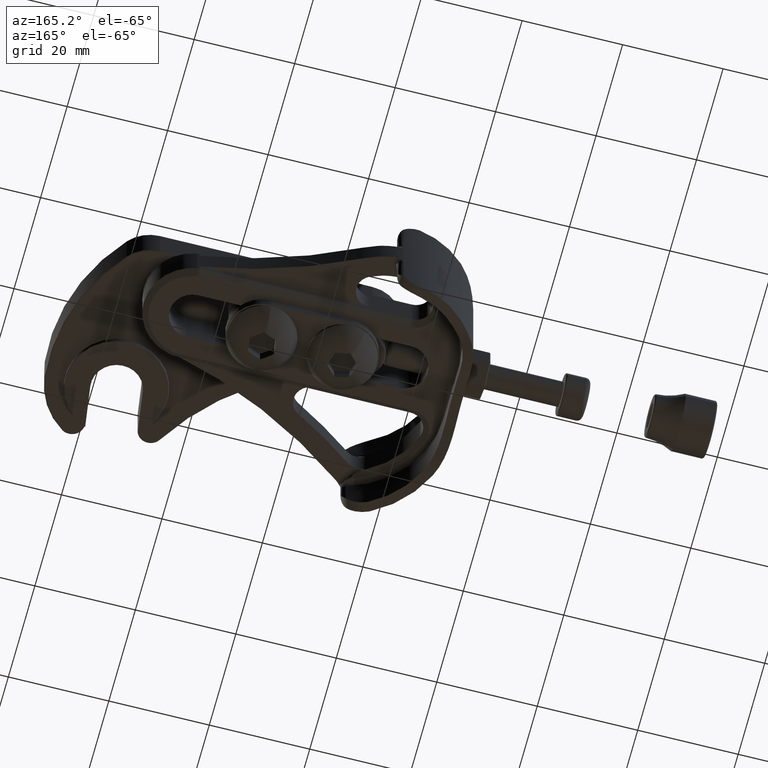
[diagram: clean part render]
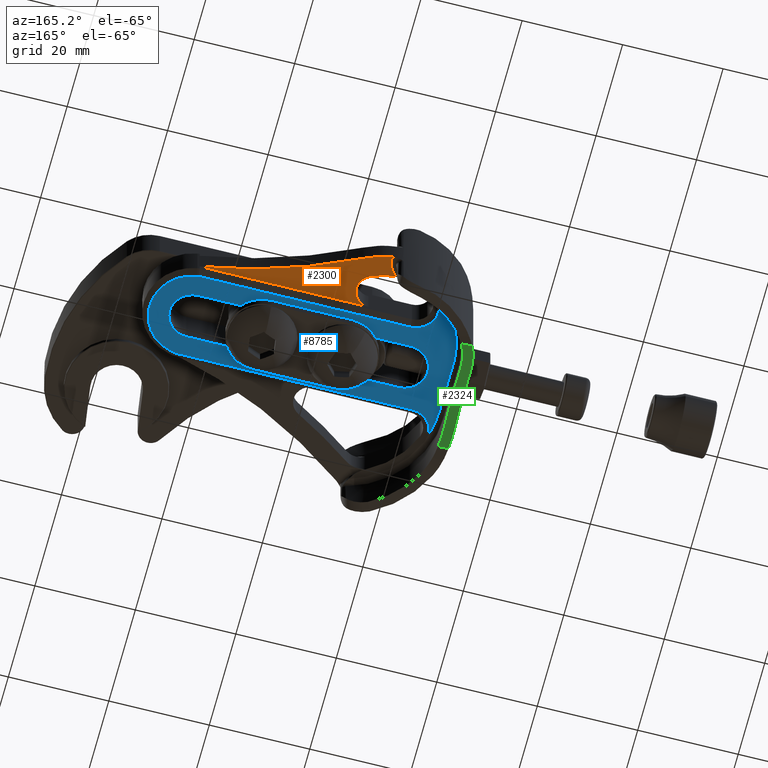
[diagram: same view with three faces highlighted in distinct colors, each labeled with its STEP entity id]
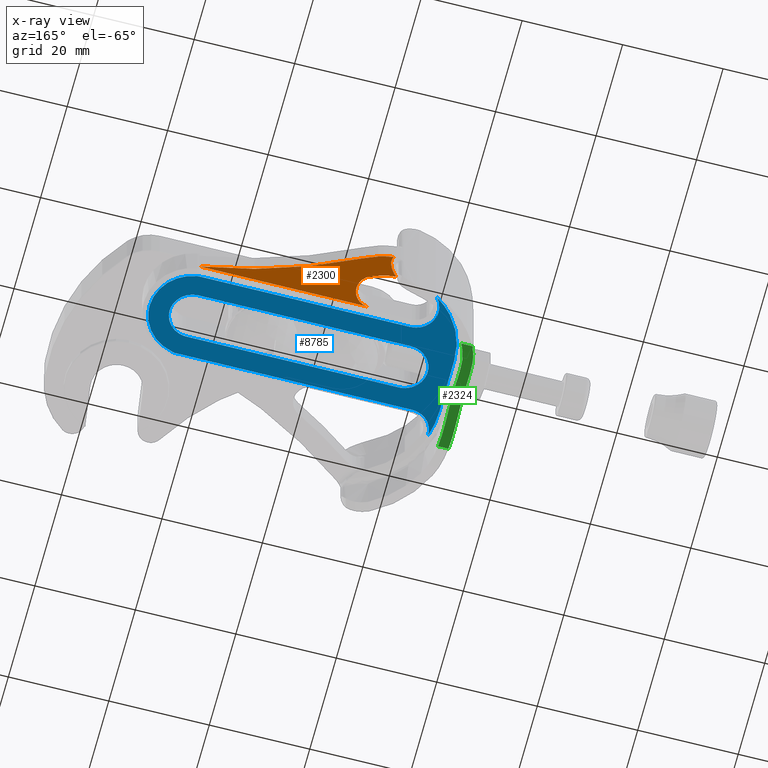
[diagram: x-ray of the same camera — body ghosted, the three highlighted faces saturated]
A machine part, auxiliary view with three faces highlighted in distinct colors.
The next image is the same camera in x-ray (body ghosted, the three faces saturated) — at least one of them is partly hidden behind the body in this view.
Their STEP definitions:

[orange] entity #2300 — the highlighted planar face has unit normal (0, 0, 1).
#6 = PLANE ( 'NONE',  #7366 ) ;
#8 = CARTESIAN_POINT ( 'NONE',  ( -7.710999999999999400, -4.462636479999999600, -0.09600000000000000200 ) ) ;
#9 = DIRECTION ( 'NONE',  ( 0.0000000000000000000, 0.0000000000000000000, 1.000000000000000000 ) ) ;
#10 = DIRECTION ( 'NONE',  ( 1.000000000000000000, 0.0000000000000000000, -0.0000000000000000000 ) ) ;
#390 = B_SPLINE_CURVE_WITH_KNOTS ( 'NONE', 3,
 ( #7849, #7844, #7843, #7850, #7851, #7852, #7853, #7854, #7855, #7856 ),
 .UNSPECIFIED., .F., .F.,
 ( 4, 2, 2, 2, 4 ),
 ( 0.4186429845292527500, 0.5639822383969395100, 0.7093214922646263700, 0.8546607461323132400, 1.000000000000000000 ),
 .UNSPECIFIED. ) ;
#419 = B_SPLINE_CURVE_WITH_KNOTS ( 'NONE', 3,
 ( #8044, #8041, #8040, #8046, #8047, #8048 ),
 .UNSPECIFIED., .F., .F.,
 ( 4, 2, 4 ),
 ( 0.0000000000000000000, 0.5000000000000000000, 1.000000000000000000 ),
 .UNSPECIFIED. ) ;
#435 = VERTEX_POINT ( 'NONE', #7762 ) ;
#548 = EDGE_LOOP ( 'NONE', ( #6985, #6986, #6987, #6988, #6989, #6990, #6991, #6992, #6993, #6994, #6995 ) ) ;
#573 = EDGE_CURVE ( 'NONE', #7254, #1844, #390, .T. ) ;
#578 = EDGE_CURVE ( 'NONE', #1844, #1840, #2954, .T. ) ;
#620 = EDGE_CURVE ( 'NONE', #1840, #7306, #419, .T. ) ;
#719 = EDGE_CURVE ( 'NONE', #2700, #2705, #3338, .T. ) ;
#786 = EDGE_CURVE ( 'NONE', #7272, #7254, #1931, .T. ) ;
#1029 = CARTESIAN_POINT ( 'NONE',  ( 0.7035010000000000400, 0.7955980000000000300, -0.09600000000000000200 ) ) ;
#1030 = DIRECTION ( 'NONE',  ( 0.0000000000000000000, 0.0000000000000000000, 1.000000000000000000 ) ) ;
#1031 = DIRECTION ( 'NONE',  ( 1.000000000000000000, 0.0000000000000000000, 0.0000000000000000000 ) ) ;
#1840 = VERTEX_POINT ( 'NONE', #9873 ) ;
#1844 = VERTEX_POINT ( 'NONE', #9877 ) ;
#1931 = B_SPLINE_CURVE_WITH_KNOTS ( 'NONE', 3,
 ( #2204, #2203, #2210, #2211, #2212, #2213 ),
 .UNSPECIFIED., .F., .F.,
 ( 4, 2, 4 ),
 ( 0.0000000000000000000, 0.2093214922646263700, 0.4186429845292527500 ),
 .UNSPECIFIED. ) ;
#2203 = CARTESIAN_POINT ( 'NONE',  ( 0.9341809636211564300, 0.6152062102135161800, -0.09599999999999997400 ) ) ;
#2204 = CARTESIAN_POINT ( 'NONE',  ( 0.9120032879308621600, 0.6256372520546552600, -0.09599999999999997400 ) ) ;
#2210 = CARTESIAN_POINT ( 'NONE',  ( 0.9532953844568629000, 0.5983591210388492500, -0.09600000000000001600 ) ) ;
#2211 = CARTESIAN_POINT ( 'NONE',  ( 0.9795634615029601400, 0.5569754061201399600, -0.09600000000000001600 ) ) ;
#2212 = CARTESIAN_POINT ( 'NONE',  ( 0.9866729994286196300, 0.5325082859784630000, -0.09600000000000000200 ) ) ;
#2213 = CARTESIAN_POINT ( 'NONE',  ( 0.9866778666869103800, 0.5080000060618086200, -0.09600000000000000200 ) ) ;
#2300 = ADVANCED_FACE ( 'NONE', ( #3533 ), #6, .F. ) ;
#2700 = VERTEX_POINT ( 'NONE', #9438 ) ;
#2705 = VERTEX_POINT ( 'NONE', #9443 ) ;
#2722 = EDGE_CURVE ( 'NONE', #7062, #7061, #9016, .T. ) ;
#2723 = EDGE_CURVE ( 'NONE', #7061, #7272, #9765, .T. ) ;
#2745 = EDGE_CURVE ( 'NONE', #2705, #7288, #9025, .T. ) ;
#2761 = EDGE_CURVE ( 'NONE', #7306, #7288, #9790, .T. ) ;
#2925 = AXIS2_PLACEMENT_3D ( 'NONE', #1029, #1030, #1031 ) ;
#2954 = LINE ( 'NONE', #7694, #2955 ) ;
#2955 = VECTOR ( 'NONE', #7695, 39.37007874015748100 ) ;
#3338 = CIRCLE ( 'NONE', #2925, 0.08500000453397003900 ) ;
#3533 = FACE_OUTER_BOUND ( 'NONE', #548, .T. ) ;
#3814 = CARTESIAN_POINT ( 'NONE',  ( 0.8218221351126873100, 0.6584075706107289600, -0.09600000000000001600 ) ) ;
#3815 = CARTESIAN_POINT ( 'NONE',  ( 0.8527941904187770200, 0.6502520359449236500, -0.09600000000000000200 ) ) ;
#3816 = CARTESIAN_POINT ( 'NONE',  ( 0.6875000000000000000, 0.1482960000000000100, -0.09600000000000000200 ) ) ;
#3817 = DIRECTION ( 'NONE',  ( -0.0000000000000000000, -0.0000000000000000000, -1.000000000000000000 ) ) ;
#3818 = DIRECTION ( 'NONE',  ( 1.000000000000000000, -5.340698087539807600E-015, 0.0000000000000000000 ) ) ;
#3820 = CARTESIAN_POINT ( 'NONE',  ( 0.8830208715123644100, 0.6392681175492411800, -0.09600000000000000200 ) ) ;
#3821 = CARTESIAN_POINT ( 'NONE',  ( 0.9120032879308621600, 0.6256372520546552600, -0.09599999999999997400 ) ) ;
#3983 = CARTESIAN_POINT ( 'NONE',  ( 0.6875000000000000000, 0.1482960000000000100, -0.09600000000000000200 ) ) ;
#3984 = DIRECTION ( 'NONE',  ( -0.0000000000000000000, -0.0000000000000000000, -1.000000000000000000 ) ) ;
#3985 = DIRECTION ( 'NONE',  ( 1.000000000000000000, -6.208745457266835800E-015, 0.0000000000000000000 ) ) ;
#4037 = CARTESIAN_POINT ( 'NONE',  ( 0.9985574622086470500, 0.7614024100196424800, -0.09600000000000001600 ) ) ;
#4038 = CARTESIAN_POINT ( 'NONE',  ( 0.9648900381349437800, 0.7784834902620448900, -0.09600000000000000200 ) ) ;
#4054 = CARTESIAN_POINT ( 'NONE',  ( 0.9298128877733130600, 0.7927849219825567900, -0.09600000000000000200 ) ) ;
#4055 = CARTESIAN_POINT ( 'NONE',  ( 0.8938000682135985900, 0.8041134511617845600, -0.09600000000000000200 ) ) ;
#4305 = CARTESIAN_POINT ( 'NONE',  ( 0.8218221351126873100, 0.6584075706107289600, -0.09600000000000001600 ) ) ;
#4306 = CARTESIAN_POINT ( 'NONE',  ( 0.7197162253693228900, 0.6748113039324935600, -0.09600000000000000200 ) ) ;
#4500 = CARTESIAN_POINT ( 'NONE',  ( 0.5767290379174511200, 0.8420077878207702400, -0.09600000000000000200 ) ) ;
#4501 = DIRECTION ( 'NONE',  ( 0.0000000000000000000, 0.0000000000000000000, 1.000000000000000000 ) ) ;
#4502 = DIRECTION ( 'NONE',  ( 1.000000000000000000, 0.0000000000000000000, 0.0000000000000000000 ) ) ;
#4504 = CARTESIAN_POINT ( 'NONE',  ( 0.7035010000000000400, 0.7955980000000000300, -0.09600000000000000200 ) ) ;
#4505 = DIRECTION ( 'NONE',  ( 0.0000000000000000000, 0.0000000000000000000, 1.000000000000000000 ) ) ;
#4506 = DIRECTION ( 'NONE',  ( 1.000000000000000000, 0.0000000000000000000, 0.0000000000000000000 ) ) ;
#4592 = CIRCLE ( 'NONE', #4802, 0.2199999999999988100 ) ;
#4594 = CIRCLE ( 'NONE', #4803, 0.08500000453397003900 ) ;
#4802 = AXIS2_PLACEMENT_3D ( 'NONE', #4500, #4501, #4502 ) ;
#4803 = AXIS2_PLACEMENT_3D ( 'NONE', #4504, #4505, #4506 ) ;
#5313 = CARTESIAN_POINT ( 'NONE',  ( 0.9866778666869103800, 0.5080000060618086200, -0.09600000000000000200 ) ) ;
#5323 = CARTESIAN_POINT ( 'NONE',  ( 0.9120032879308621600, 0.6256372520546552600, -0.09599999999999997400 ) ) ;
#5339 = CARTESIAN_POINT ( 'NONE',  ( 0.8938000682135985900, 0.8041134511617845600, -0.09600000000000000200 ) ) ;
#5355 = CARTESIAN_POINT ( 'NONE',  ( 0.9985574622086470500, 0.7614024100196424800, -0.09600000000000001600 ) ) ;
#6985 = ORIENTED_EDGE ( 'NONE', *, *, #2722, .F. ) ;
#6986 = ORIENTED_EDGE ( 'NONE', *, *, #7174, .T. ) ;
#6987 = ORIENTED_EDGE ( 'NONE', *, *, #7175, .T. ) ;
#6988 = ORIENTED_EDGE ( 'NONE', *, *, #719, .T. ) ;
#6989 = ORIENTED_EDGE ( 'NONE', *, *, #2745, .T. ) ;
#6990 = ORIENTED_EDGE ( 'NONE', *, *, #2761, .F. ) ;
#6991 = ORIENTED_EDGE ( 'NONE', *, *, #620, .F. ) ;
#6992 = ORIENTED_EDGE ( 'NONE', *, *, #578, .F. ) ;
#6993 = ORIENTED_EDGE ( 'NONE', *, *, #573, .F. ) ;
#6994 = ORIENTED_EDGE ( 'NONE', *, *, #786, .F. ) ;
#6995 = ORIENTED_EDGE ( 'NONE', *, *, #2723, .F. ) ;
#7061 = VERTEX_POINT ( 'NONE', #4305 ) ;
#7062 = VERTEX_POINT ( 'NONE', #4306 ) ;
#7174 = EDGE_CURVE ( 'NONE', #7062, #435, #4592, .T. ) ;
#7175 = EDGE_CURVE ( 'NONE', #435, #2700, #4594, .T. ) ;
#7254 = VERTEX_POINT ( 'NONE', #5313 ) ;
#7272 = VERTEX_POINT ( 'NONE', #5323 ) ;
#7288 = VERTEX_POINT ( 'NONE', #5339 ) ;
#7306 = VERTEX_POINT ( 'NONE', #5355 ) ;
#7366 = AXIS2_PLACEMENT_3D ( 'NONE', #8, #9, #10 ) ;
#7470 = AXIS2_PLACEMENT_3D ( 'NONE', #3816, #3817, #3818 ) ;
#7475 = AXIS2_PLACEMENT_3D ( 'NONE', #3983, #3984, #3985 ) ;
#7694 = CARTESIAN_POINT ( 'NONE',  ( -7.710999999999999400, 0.3780000000000001700, -0.09600000000000000200 ) ) ;
#7695 = DIRECTION ( 'NONE',  ( 1.000000000000000000, 0.0000000000000000000, -0.0000000000000000000 ) ) ;
#7762 = CARTESIAN_POINT ( 'NONE',  ( 0.7833203904718195600, 0.7663770199431621000, -0.09600000000000000200 ) ) ;
#7843 = CARTESIAN_POINT ( 'NONE',  ( 0.9832894486585109800, 0.4739727774805642100, -0.09600000000000001600 ) ) ;
#7844 = CARTESIAN_POINT ( 'NONE',  ( 0.9866730003967293400, 0.4909830425712797800, -0.09599999999999997400 ) ) ;
#7849 = CARTESIAN_POINT ( 'NONE',  ( 0.9866778666869103800, 0.5080000060618086200, -0.09600000000000000200 ) ) ;
#7850 = CARTESIAN_POINT ( 'NONE',  ( 0.9702652315341731000, 0.4425295343046401500, -0.09600000000000000200 ) ) ;
#7851 = CARTESIAN_POINT ( 'NONE',  ( 0.9606296906216357200, 0.4281089277936635000, -0.09600000000000000200 ) ) ;
#7852 = CARTESIAN_POINT ( 'NONE',  ( 0.9365640746299591600, 0.4040433112409267400, -0.09600000000000000200 ) ) ;
#7853 = CARTESIAN_POINT ( 'NONE',  ( 0.9221434683436229300, 0.3944077699921902400, -0.09600000000000000200 ) ) ;
#7854 = CARTESIAN_POINT ( 'NONE',  ( 0.8907002254713425300, 0.3813835521347920300, -0.09600000000000000200 ) ) ;
#7855 = CARTESIAN_POINT ( 'NONE',  ( 0.8736899604595107500, 0.3779999999999999500, -0.09600000000000000200 ) ) ;
#7856 = CARTESIAN_POINT ( 'NONE',  ( 0.8566730000000001300, 0.3780000000000001100, -0.09600000000000000200 ) ) ;
#8040 = CARTESIAN_POINT ( 'NONE',  ( 1.772897590894501300, 0.4593018339659973900, -0.09600000000000001600 ) ) ;
#8041 = CARTESIAN_POINT ( 'NONE',  ( 1.975845982953497100, 0.4106175059578290900, -0.09599999999999997400 ) ) ;
#8044 = CARTESIAN_POINT ( 'NONE',  ( 2.181346615883027700, 0.3780000000001747500, -0.09600000000000000200 ) ) ;
#8046 = CARTESIAN_POINT ( 'NONE',  ( 1.377029723910994500, 0.5876228346138653300, -0.09600000000000001600 ) ) ;
#8047 = CARTESIAN_POINT ( 'NONE',  ( 1.184114157432046200, 0.6672582403266750200, -0.09600000000000000200 ) ) ;
#8048 = CARTESIAN_POINT ( 'NONE',  ( 0.9985574622086470500, 0.7614024100196424800, -0.09600000000000001600 ) ) ;
#9016 = CIRCLE ( 'NONE', #7470, 0.5275000004285999000 ) ;
#9025 = CIRCLE ( 'NONE', #7475, 0.6874999981042001500 ) ;
#9438 = CARTESIAN_POINT ( 'NONE',  ( 0.7885010045339699800, 0.7955980000000000300, -0.09600000000000001600 ) ) ;
#9443 = CARTESIAN_POINT ( 'NONE',  ( 0.7815181867536478100, 0.8293369884528473100, -0.09600000000000000200 ) ) ;
#9765 = B_SPLINE_CURVE_WITH_KNOTS ( 'NONE', 3,
 ( #3814, #3815, #3820, #3821 ),
 .UNSPECIFIED., .F., .F.,
 ( 4, 4 ),
 ( 0.0000000000000000000, 1.000000000000000000 ),
 .UNSPECIFIED. ) ;
#9790 = B_SPLINE_CURVE_WITH_KNOTS ( 'NONE', 3,
 ( #4037, #4038, #4054, #4055 ),
 .UNSPECIFIED., .F., .F.,
 ( 4, 4 ),
 ( 0.0000000000000000000, 1.000000000000000000 ),
 .UNSPECIFIED. ) ;
#9873 = CARTESIAN_POINT ( 'NONE',  ( 2.181346615883027700, 0.3780000000001747500, -0.09600000000000000200 ) ) ;
#9877 = CARTESIAN_POINT ( 'NONE',  ( 0.8566730000000001300, 0.3780000000000001100, -0.09600000000000000200 ) ) ;

[blue] entity #8785 — the highlighted planar face has unit normal (0, 0, 1).
#392 = B_SPLINE_CURVE_WITH_KNOTS ( 'NONE', 3,
 ( #7702, #7699, #7691, #7703, #7704, #3096, #3097, #3098, #3099, #3100, #3101, #3102, #3103, #3104, #3105, #3106, #3107, #3108, #3109, #3110, #3111, #3112, #3113, #3114, #3115, #3116, #3117, #3118, #3119, #3120, #3121, #3122, #3123, #3124, #3125, #3126, #3127, #3128, #3129, #3130, #3131, #3132, #3133, #3134, #3135, #3136, #3137, #3138, #3139, #3140, #3141, #3142, #3143, #3144, #3145, #3146, #3147, #3148 ),
 .UNSPECIFIED., .F., .F.,
 ( 4, 1, 1, 1, 1, 2, 2, 1, 2, 2, 2, 1, 2, 2, 1, 1, 2, 2, 2, 1, 1, 1, 1, 2, 2, 1, 2, 2, 2, 1, 2, 2, 1, 1, 2, 2, 4 ),
 ( 0.0000000000000000000, 0.06249999999999632200, 0.09374999999999447700, 0.1093749999999933200, 0.1171874999999929400, 0.1210937499999927400, 0.1249999999999925300, 0.1562499999999929500, 0.1718749999999931200, 0.1874999999999932000, 0.2499999999999935100, 0.2812499999999937800, 0.2968749999999940000, 0.3124999999999942800, 0.3437499999999947800, 0.3593749999999949500, 0.3671874999999950000, 0.3749999999999950000, 0.4999999999999967800, 0.5624999999999976700, 0.5937499999999981100, 0.6093749999999983300, 0.6171874999999984500, 0.6210937499999984500, 0.6249999999999984500, 0.6562499999999986700, 0.6718749999999988900, 0.6874999999999991100, 0.7499999999999993300, 0.7812499999999994400, 0.7968749999999995600, 0.8124999999999995600, 0.8437499999999996700, 0.8593749999999996700, 0.8671874999999995600, 0.8749999999999995600, 1.000000000000000000 ),
 .UNSPECIFIED. ) ;
#393 = B_SPLINE_CURVE_WITH_KNOTS ( 'NONE', 3,
 ( #3153, #3151, #3150, #3154, #3155, #3156, #3157, #3158, #3159, #3160 ),
 .UNSPECIFIED., .F., .F.,
 ( 4, 2, 2, 2, 4 ),
 ( 0.4849632452582294800, 0.6137224339436718700, 0.7424816226291146600, 0.8712408113145573300, 1.000000000000000000 ),
 .UNSPECIFIED. ) ;
#394 = B_SPLINE_CURVE_WITH_KNOTS ( 'NONE', 3,
 ( #3163, #3162, #3164, #3165 ),
 .UNSPECIFIED., .F., .F.,
 ( 4, 4 ),
 ( 0.0000000000000000000, 1.000000000000000000 ),
 .UNSPECIFIED. ) ;
#523 = EDGE_LOOP ( 'NONE', ( #5060, #5062, #5063, #5065, #5067, #5069, #5072, #5074, #5075, #5076, #5078, #5080 ) ) ;
#531 = EDGE_LOOP ( 'NONE', ( #5050, #5051, #5053, #5055, #5057 ) ) ;
#581 = EDGE_CURVE ( 'NONE', #1843, #1836, #392, .T. ) ;
#582 = EDGE_CURVE ( 'NONE', #7071, #7297, #2962, .T. ) ;
#583 = EDGE_CURVE ( 'NONE', #7268, #1833, #393, .T. ) ;
#584 = EDGE_CURVE ( 'NONE', #1829, #7262, #394, .T. ) ;
#783 = EDGE_CURVE ( 'NONE', #7262, #7268, #1929, .T. ) ;
#790 = EDGE_CURVE ( 'NONE', #7252, #7275, #1934, .T. ) ;
#796 = EDGE_CURVE ( 'NONE', #7282, #7283, #1936, .T. ) ;
#822 = EDGE_CURVE ( 'NONE', #7081, #7071, #1953, .T. ) ;
#1526 = EDGE_CURVE ( 'NONE', #7081, #1828, #1981, .T. ) ;
#1530 = EDGE_CURVE ( 'NONE', #1830, #1831, #3517, .T. ) ;
#1532 = EDGE_CURVE ( 'NONE', #1831, #7282, #1984, .T. ) ;
#1533 = EDGE_CURVE ( 'NONE', #7275, #1827, #1985, .T. ) ;
#1539 = EDGE_CURVE ( 'NONE', #1833, #1830, #1989, .T. ) ;
#1548 = EDGE_CURVE ( 'NONE', #1828, #1829, #3526, .T. ) ;
#1561 = EDGE_CURVE ( 'NONE', #1843, #7252, #3534, .T. ) ;
#1564 = EDGE_CURVE ( 'NONE', #1827, #1836, #3538, .T. ) ;
#1827 = VERTEX_POINT ( 'NONE', #9860 ) ;
#1828 = VERTEX_POINT ( 'NONE', #9861 ) ;
#1829 = VERTEX_POINT ( 'NONE', #9862 ) ;
#1830 = VERTEX_POINT ( 'NONE', #9863 ) ;
#1831 = VERTEX_POINT ( 'NONE', #9864 ) ;
#1833 = VERTEX_POINT ( 'NONE', #9866 ) ;
#1836 = VERTEX_POINT ( 'NONE', #9869 ) ;
#1843 = VERTEX_POINT ( 'NONE', #9876 ) ;
#1929 = B_SPLINE_CURVE_WITH_KNOTS ( 'NONE', 3,
 ( #2165, #2167, #2194, #2195, #2196, #2197, #2198, #2199, #2200, #2201 ),
 .UNSPECIFIED., .F., .F.,
 ( 4, 2, 2, 2, 4 ),
 ( 0.0000000000000000000, 0.1212408113145573700, 0.2424816226291147400, 0.3637224339436721000, 0.4849632452582294800 ),
 .UNSPECIFIED. ) ;
#1934 = B_SPLINE_CURVE_WITH_KNOTS ( 'NONE', 3,
 ( #2236, #2232, #2231, #2238, #2239, #2240, #2241, #2242, #2243, #2244 ),
 .UNSPECIFIED., .F., .F.,
 ( 4, 2, 2, 2, 4 ),
 ( 0.0000000000000000000, 0.1250000000000000000, 0.2500000000000000000, 0.3750000000000000000, 0.5000000000000000000 ),
 .UNSPECIFIED. ) ;
#1936 = B_SPLINE_CURVE_WITH_KNOTS ( 'NONE', 3,
 ( #2286, #2284, #2278, #2287, #2288, #2289 ),
 .UNSPECIFIED., .F., .F.,
 ( 4, 2, 4 ),
 ( 0.6843715124735970700, 0.8421857562367984800, 1.000000000000000000 ),
 .UNSPECIFIED. ) ;
#1953 = B_SPLINE_CURVE_WITH_KNOTS ( 'NONE', 3,
 ( #8222, #8210, #8217, #8223, #8224, #8225 ),
 .UNSPECIFIED., .F., .F.,
 ( 4, 2, 4 ),
 ( 0.0000000000000000000, 0.5000000000000000000, 1.000000000000000000 ),
 .UNSPECIFIED. ) ;
#1981 = B_SPLINE_CURVE_WITH_KNOTS ( 'NONE', 3,
 ( #8493, #8485, #8502, #8503, #8504, #8505, #8506, #8507, #8508, #8509 ),
 .UNSPECIFIED., .F., .F.,
 ( 4, 2, 2, 2, 4 ),
 ( 0.0000000000000000000, 0.2500000000000000000, 0.5000000000000000000, 0.7500000000000000000, 1.000000000000000000 ),
 .UNSPECIFIED. ) ;
#1984 = B_SPLINE_CURVE_WITH_KNOTS ( 'NONE', 3,
 ( #8518, #9458, #9462, #9463, #9464, #9465, #9466, #9467, #9468, #9469 ),
 .UNSPECIFIED., .F., .F.,
 ( 4, 2, 2, 2, 4 ),
 ( 0.0000000000000000000, 0.1710928781183992700, 0.3421857562367985300, 0.5132786343551978300, 0.6843715124735970700 ),
 .UNSPECIFIED. ) ;
#1985 = B_SPLINE_CURVE_WITH_KNOTS ( 'NONE', 3,
 ( #9460, #9461, #9472, #9473, #9474, #9475, #9476, #9477, #9478, #9479 ),
 .UNSPECIFIED., .F., .F.,
 ( 4, 2, 2, 2, 4 ),
 ( 0.5000000000000000000, 0.6250000000000000000, 0.7500000000000000000, 0.8750000000000000000, 1.000000000000000000 ),
 .UNSPECIFIED. ) ;
#1989 = B_SPLINE_CURVE_WITH_KNOTS ( 'NONE', 3,
 ( #9519, #9520, #9524, #9525 ),
 .UNSPECIFIED., .F., .F.,
 ( 4, 4 ),
 ( 0.0000000000000000000, 1.000000000000000000 ),
 .UNSPECIFIED. ) ;
#2165 = CARTESIAN_POINT ( 'NONE',  ( 2.217389774460367700, -0.3257000421460981000, -0.1770003331426493500 ) ) ;
#2167 = CARTESIAN_POINT ( 'NONE',  ( 2.253613157603902500, -0.3169820988174575900, -0.1770006459995693600 ) ) ;
#2194 = CARTESIAN_POINT ( 'NONE',  ( 2.288361249889221800, -0.3021672002786827100, -0.1770006187928765400 ) ) ;
#2195 = CARTESIAN_POINT ( 'NONE',  ( 2.351102257406565900, -0.2619662951186225700, -0.1770005643794907200 ) ) ;
#2196 = CARTESIAN_POINT ( 'NONE',  ( 2.379082282095495800, -0.2365885479786190300, -0.1770005371727978400 ) ) ;
#2197 = CARTESIAN_POINT ( 'NONE',  ( 2.425197691308532000, -0.1780572013448320500, -0.1770004827594120800 ) ) ;
#2198 = CARTESIAN_POINT ( 'NONE',  ( 2.443323601108182300, -0.1449156274422226400, -0.1770004555527192000 ) ) ;
#2199 = CARTESIAN_POINT ( 'NONE',  ( 2.467727125999134700, -0.07450951844436547200, -0.1770004011393333800 ) ) ;
#2200 = CARTESIAN_POINT ( 'NONE',  ( 2.473999727196678000, -0.03725944869495459400, -0.1770003739326404800 ) ) ;
#2201 = CARTESIAN_POINT ( 'NONE',  ( 2.474000311589863400, -1.714815621473866800E-006, -0.1770001733629738000 ) ) ;
#2231 = CARTESIAN_POINT ( 'NONE',  ( 2.185591123415952200, 0.1733671364469601400, -0.1770000000000000200 ) ) ;
#2232 = CARTESIAN_POINT ( 'NONE',  ( 2.162300145514124000, 0.1779999999999999900, -0.1769999999999999900 ) ) ;
#2236 = CARTESIAN_POINT ( 'NONE',  ( 2.138999999999999300, 0.1780000000000000500, -0.1769999999999999900 ) ) ;
#2238 = CARTESIAN_POINT ( 'NONE',  ( 2.228644178506019800, 0.1555339771270578000, -0.1769999999999999600 ) ) ;
#2239 = CARTESIAN_POINT ( 'NONE',  ( 2.248389316155535100, 0.1423406979468759000, -0.1769999999999999900 ) ) ;
#2240 = CARTESIAN_POINT ( 'NONE',  ( 2.281340697946876400, 0.1093893161555346500, -0.1770000000000000200 ) ) ;
#2241 = CARTESIAN_POINT ( 'NONE',  ( 2.294533977127057900, 0.08964417850602012000, -0.1769999999999999900 ) ) ;
#2242 = CARTESIAN_POINT ( 'NONE',  ( 2.312367136446960000, 0.04659112341595188900, -0.1770000000000000500 ) ) ;
#2243 = CARTESIAN_POINT ( 'NONE',  ( 2.317000000000000200, 0.02330014551412424800, -0.1769999999999999900 ) ) ;
#2244 = CARTESIAN_POINT ( 'NONE',  ( 2.316999999999999700, -2.179871302482288500E-017, -0.1769999999999999900 ) ) ;
#2278 = CARTESIAN_POINT ( 'NONE',  ( 0.3471950903815744800, 0.5502531442562165200, -0.1769999992424933200 ) ) ;
#2284 = CARTESIAN_POINT ( 'NONE',  ( 0.3433270020741714400, 0.5291295850664257100, -0.1769999992424933200 ) ) ;
#2286 = CARTESIAN_POINT ( 'NONE',  ( 0.3433218935883020100, 0.5080000014352698000, -0.1769999996212466800 ) ) ;
#2287 = CARTESIAN_POINT ( 'NONE',  ( 0.3621697278478920900, 0.5897701970638263800, -0.1769999992424932900 ) ) ;
#2288 = CARTESIAN_POINT ( 'NONE',  ( 0.3732720074064868100, 0.6081524234959341200, -0.1769999992424933800 ) ) ;
#2289 = CARTESIAN_POINT ( 'NONE',  ( 0.3872749571364001400, 0.6239757238751261200, -0.1769999846692460700 ) ) ;
#2742 = EDGE_CURVE ( 'NONE', #7297, #7283, #9781, .T. ) ;
#2961 = VECTOR ( 'NONE', #3149, 39.37007874015748100 ) ;
#2962 = LINE ( 'NONE', #7701, #2961 ) ;
#3096 = CARTESIAN_POINT ( 'NONE',  ( 0.4120895534161291300, 0.1672668506721065000, -0.1769999999999999900 ) ) ;
#3097 = CARTESIAN_POINT ( 'NONE',  ( 0.4101112748102631600, 0.1665228114042599000, -0.1769999999999999100 ) ) ;
#3098 = CARTESIAN_POINT ( 'NONE',  ( 0.4087940143193655200, 0.1660186590948327900, -0.1769999999999999900 ) ) ;
#3099 = CARTESIAN_POINT ( 'NONE',  ( 0.4081790137578009700, 0.1657794830155178100, -0.1769999999999999600 ) ) ;
#3100 = CARTESIAN_POINT ( 'NONE',  ( 0.4018801652194744500, 0.1632849941778690700, -0.1770000000000000500 ) ) ;
#3101 = CARTESIAN_POINT ( 'NONE',  ( 0.3936956231355214800, 0.1595573620454125400, -0.1769999999999999900 ) ) ;
#3102 = CARTESIAN_POINT ( 'NONE',  ( 0.3858319650022954400, 0.1552272593895686100, -0.1769999999999999900 ) ) ;
#3103 = CARTESIAN_POINT ( 'NONE',  ( 0.3806608337914160200, 0.1522066419471420600, -0.1770000000000000200 ) ) ;
#3104 = CARTESIAN_POINT ( 'NONE',  ( 0.3781707278426647600, 0.1506685019244849200, -0.1769999999999999900 ) ) ;
#3105 = CARTESIAN_POINT ( 'NONE',  ( 0.3653004081165641100, 0.1422519972866603000, -0.1769999999999999600 ) ) ;
#3106 = CARTESIAN_POINT ( 'NONE',  ( 0.3558330623985760400, 0.1345651486384951400, -0.1769999999999999900 ) ) ;
#3107 = CARTESIAN_POINT ( 'NONE',  ( 0.3427859582239041200, 0.1215149362575604500, -0.1770000000000000200 ) ) ;
#3108 = CARTESIAN_POINT ( 'NONE',  ( 0.3366341579370225600, 0.1146946742937459400, -0.1769999999999999600 ) ) ;
#3109 = CARTESIAN_POINT ( 'NONE',  ( 0.3310399853508200800, 0.1074316786699094100, -0.1770000000000000200 ) ) ;
#3110 = CARTESIAN_POINT ( 'NONE',  ( 0.3274344542268368100, 0.1024912963295693800, -0.1770000000000000500 ) ) ;
#3111 = CARTESIAN_POINT ( 'NONE',  ( 0.3256621630836886200, 0.09992374283488013300, -0.1769999999999999900 ) ) ;
#3112 = CARTESIAN_POINT ( 'NONE',  ( 0.3207200708418615500, 0.09236252263790628600, -0.1769999999999999600 ) ) ;
#3113 = CARTESIAN_POINT ( 'NONE',  ( 0.3161843851469232600, 0.08459660281435176000, -0.1769999999999999900 ) ) ;
#3114 = CARTESIAN_POINT ( 'NONE',  ( 0.3116039632932188800, 0.07517813867368776400, -0.1769999999999999900 ) ) ;
#3115 = CARTESIAN_POINT ( 'NONE',  ( 0.3097933278110020500, 0.07106489168200670600, -0.1769999999999999900 ) ) ;
#3116 = CARTESIAN_POINT ( 'NONE',  ( 0.3086201047017642600, 0.06830566871867103900, -0.1769999999999999600 ) ) ;
#3117 = CARTESIAN_POINT ( 'NONE',  ( 0.3080185850254731400, 0.06683707067427825700, -0.1769999999999999900 ) ) ;
#3118 = CARTESIAN_POINT ( 'NONE',  ( 0.2991632405775130900, 0.04446146034577299500, -0.1770000000000000200 ) ) ;
#3119 = CARTESIAN_POINT ( 'NONE',  ( 0.2949973432195300300, 0.02264863293643875500, -0.1769999999999999900 ) ) ;
#3120 = CARTESIAN_POINT ( 'NONE',  ( 0.2950013283902349600, -0.01132431646821939500, -0.1770000000000000200 ) ) ;
#3121 = CARTESIAN_POINT ( 'NONE',  ( 0.2965645349842728200, -0.02800766110713534200, -0.1769999999999999900 ) ) ;
#3122 = CARTESIAN_POINT ( 'NONE',  ( 0.3011204005258478200, -0.04694108557489840700, -0.1770000000000000200 ) ) ;
#3123 = CARTESIAN_POINT ( 'NONE',  ( 0.3040813644254339900, -0.05627517840603695600, -0.1769999999999999900 ) ) ;
#3124 = CARTESIAN_POINT ( 'NONE',  ( 0.3057326041574270300, -0.06090906997092036100, -0.1770000000000000200 ) ) ;
#3125 = CARTESIAN_POINT ( 'NONE',  ( 0.3064768692816101600, -0.06288791888786628100, -0.1769999999999999900 ) ) ;
#3126 = CARTESIAN_POINT ( 'NONE',  ( 0.3069811773540273000, -0.06420557269674995200, -0.1769999999999999900 ) ) ;
#3127 = CARTESIAN_POINT ( 'NONE',  ( 0.3072205169844362000, -0.06482098624211961300, -0.1769999999999999600 ) ) ;
#3128 = CARTESIAN_POINT ( 'NONE',  ( 0.3097150058224954500, -0.07111983478116226700, -0.1769999999999999900 ) ) ;
#3129 = CARTESIAN_POINT ( 'NONE',  ( 0.3134426379552259200, -0.07930437686559212200, -0.1769999999999999900 ) ) ;
#3130 = CARTESIAN_POINT ( 'NONE',  ( 0.3177727406109328600, -0.08716803499858021000, -0.1769999999999999600 ) ) ;
#3131 = CARTESIAN_POINT ( 'NONE',  ( 0.3207933580531772100, -0.09233916620914109400, -0.1769999999999999900 ) ) ;
#3132 = CARTESIAN_POINT ( 'NONE',  ( 0.3223314980755883600, -0.09482927215748841700, -0.1769999999999999900 ) ) ;
#3133 = CARTESIAN_POINT ( 'NONE',  ( 0.3307480027130441100, -0.1076995918828238900, -0.1769999999999999600 ) ) ;
#3134 = CARTESIAN_POINT ( 'NONE',  ( 0.3384348513631860200, -0.1171669376027875000, -0.1769999999999999900 ) ) ;
#3135 = CARTESIAN_POINT ( 'NONE',  ( 0.3514850637415990500, -0.1302140417754142600, -0.1769999999999999900 ) ) ;
#3136 = CARTESIAN_POINT ( 'NONE',  ( 0.3583053257047837900, -0.1363658420617850900, -0.1770000000000000200 ) ) ;
#3137 = CARTESIAN_POINT ( 'NONE',  ( 0.3655683213289357400, -0.1419600146482425400, -0.1769999999999999900 ) ) ;
#3138 = CARTESIAN_POINT ( 'NONE',  ( 0.3705087036696962900, -0.1455655457725666700, -0.1769999999999999900 ) ) ;
#3139 = CARTESIAN_POINT ( 'NONE',  ( 0.3730762571653095700, -0.1473378369163700400, -0.1770000000000000200 ) ) ;
#3140 = CARTESIAN_POINT ( 'NONE',  ( 0.3806374773617146600, -0.1522799291580200500, -0.1769999999999999900 ) ) ;
#3141 = CARTESIAN_POINT ( 'NONE',  ( 0.3884033971849847300, -0.1568156148528690700, -0.1769999999999999900 ) ) ;
#3142 = CARTESIAN_POINT ( 'NONE',  ( 0.3978218613258132100, -0.1613960367066250300, -0.1770000000000000200 ) ) ;
#3143 = CARTESIAN_POINT ( 'NONE',  ( 0.4019351083176732100, -0.1632066721888982800, -0.1769999999999999900 ) ) ;
#3144 = CARTESIAN_POINT ( 'NONE',  ( 0.4046943312811510100, -0.1643798952981805300, -0.1769999999999999600 ) ) ;
#3145 = CARTESIAN_POINT ( 'NONE',  ( 0.4061641872573380500, -0.1649819128120272300, -0.1769999999999999900 ) ) ;
#3146 = CARTESIAN_POINT ( 'NONE',  ( 0.4285184127483668800, -0.1738287940224751700, -0.1769999999999999600 ) ) ;
#3147 = CARTESIAN_POINT ( 'NONE',  ( 0.4503586988490376200, -0.1779946881594376700, -0.1769999999999999600 ) ) ;
#3148 = CARTESIAN_POINT ( 'NONE',  ( 0.4730000000000001400, -0.1780000000000000500, -0.1769999999999999900 ) ) ;
#3149 = DIRECTION ( 'NONE',  ( 2.400643935218000100E-009, 1.000000000000000000, -0.0000000000000000000 ) ) ;
#3150 = CARTESIAN_POINT ( 'NONE',  ( 2.466917048163666400, 0.07912427711966732400, -0.1770002889382824600 ) ) ;
#3151 = CARTESIAN_POINT ( 'NONE',  ( 2.473999783282962600, 0.03956644312719724600, -0.1770003178321150600 ) ) ;
#3153 = CARTESIAN_POINT ( 'NONE',  ( 2.474000311589863400, -1.714815621473866800E-006, -0.1770001733629738000 ) ) ;
#3154 = CARTESIAN_POINT ( 'NONE',  ( 2.439458901462852000, 0.1533442874405516200, -0.1770002311506173000 ) ) ;
#3155 = CARTESIAN_POINT ( 'NONE',  ( 2.419090661376571500, 0.1879870788767536200, -0.1770002022567847300 ) ) ;
#3156 = CARTESIAN_POINT ( 'NONE',  ( 2.367585972508726900, 0.2480689398481529800, -0.1770001444691195700 ) ) ;
#3157 = CARTESIAN_POINT ( 'NONE',  ( 2.336462975737884800, 0.2734923170916546100, -0.1770001155752870800 ) ) ;
#3158 = CARTESIAN_POINT ( 'NONE',  ( 2.267311193206194900, 0.3119708462570891500, -0.1770000577876218500 ) ) ;
#3159 = CARTESIAN_POINT ( 'NONE',  ( 2.229300468561595100, 0.3250159482580195500, -0.1770000288937893000 ) ) ;
#3160 = CARTESIAN_POINT ( 'NONE',  ( 2.190197134979677600, 0.3310634015973446500, -0.1770003441299083400 ) ) ;
#3162 = CARTESIAN_POINT ( 'NONE',  ( 2.197491671092895300, -0.3305287627988026100, -0.1769999999996672000 ) ) ;
#3163 = CARTESIAN_POINT ( 'NONE',  ( 2.187556569238912300, -0.3329999705530805600, -0.1769999898028211700 ) ) ;
#3164 = CARTESIAN_POINT ( 'NONE',  ( 2.207436135490334000, -0.3280953428953798900, -0.1769999999996672000 ) ) ;
#3165 = CARTESIAN_POINT ( 'NONE',  ( 2.217389774460367700, -0.3257000421460981000, -0.1770003331426493500 ) ) ;
#3517 = LINE ( 'NONE', #8515, #3519 ) ;
#3519 = VECTOR ( 'NONE', #8517, 39.37007874015748100 ) ;
#3526 = LINE ( 'NONE', #9566, #3531 ) ;
#3530 = VECTOR ( 'NONE', #9634, 39.37007874015748100 ) ;
#3531 = VECTOR ( 'NONE', #9568, 39.37007874015748100 ) ;
#3534 = LINE ( 'NONE', #9628, #3530 ) ;
#3538 = LINE ( 'NONE', #9639, #3541 ) ;
#3541 = VECTOR ( 'NONE', #9640, 39.37007874015748100 ) ;
#3944 = CARTESIAN_POINT ( 'NONE',  ( 0.1250017199389835400, 0.1716650496817403200, -0.1769999999999999900 ) ) ;
#3945 = CARTESIAN_POINT ( 'NONE',  ( 0.1250000010641987800, 0.1482960013503851800, -0.1770000000000000200 ) ) ;
#3954 = CARTESIAN_POINT ( 'NONE',  ( 0.1271522041408363600, 0.2064432567887016000, -0.1769999999999999900 ) ) ;
#3955 = CARTESIAN_POINT ( 'NONE',  ( 0.1334199376832649900, 0.2465359423142346700, -0.1770000000000000200 ) ) ;
#3956 = CARTESIAN_POINT ( 'NONE',  ( 0.1374935132812106500, 0.2664618127188553300, -0.1769999999999999600 ) ) ;
#3957 = CARTESIAN_POINT ( 'NONE',  ( 0.1397652282868687400, 0.2763946298316278800, -0.1769999999999999900 ) ) ;
#3958 = CARTESIAN_POINT ( 'NONE',  ( 0.1407891619764387600, 0.2806450975750589500, -0.1769999999999999900 ) ) ;
#3959 = CARTESIAN_POINT ( 'NONE',  ( 0.1414829714459947300, 0.2834773085426061700, -0.1769999999999999900 ) ) ;
#3960 = CARTESIAN_POINT ( 'NONE',  ( 0.1418233402882740600, 0.2848447787333479600, -0.1769999999999999900 ) ) ;
#3961 = CARTESIAN_POINT ( 'NONE',  ( 0.1540406379756026100, 0.3331102317283101700, -0.1770000000000000500 ) ) ;
#3962 = CARTESIAN_POINT ( 'NONE',  ( 0.1716010561219551700, 0.3776153067489799200, -0.1769999999999999100 ) ) ;
#3963 = CARTESIAN_POINT ( 'NONE',  ( 0.2065697886173351900, 0.4410315887798530500, -0.1770000000000000200 ) ) ;
#3964 = CARTESIAN_POINT ( 'NONE',  ( 0.2259155339731019900, 0.4713708875683055900, -0.1769999999999999900 ) ) ;
#3965 = CARTESIAN_POINT ( 'NONE',  ( 0.2517429836606284200, 0.5043712622576122000, -0.1769999999999999900 ) ) ;
#3966 = CARTESIAN_POINT ( 'NONE',  ( 0.2654710618641742400, 0.5202725811279617100, -0.1769999999999999900 ) ) ;
#3967 = CARTESIAN_POINT ( 'NONE',  ( 0.2725386893058919200, 0.5280735234445574900, -0.1770000000000000200 ) ) ;
#3968 = CARTESIAN_POINT ( 'NONE',  ( 0.2756112985680472200, 0.5313847021976914100, -0.1769999999999999600 ) ) ;
#3969 = CARTESIAN_POINT ( 'NONE',  ( 0.2776693994256710400, 0.5335850253131810800, -0.1769999999999999900 ) ) ;
#3970 = CARTESIAN_POINT ( 'NONE',  ( 0.2787364913145648500, 0.5347165510925001600, -0.1769999999999999600 ) ) ;
#3971 = CARTESIAN_POINT ( 'NONE',  ( 0.3119196740839624300, 0.5696339585494441000, -0.1769999999999999900 ) ) ;
#3972 = CARTESIAN_POINT ( 'NONE',  ( 0.3477639800571037400, 0.5990343127923538600, -0.1770000000000000200 ) ) ;
#3973 = CARTESIAN_POINT ( 'NONE',  ( 0.3872749571364001400, 0.6239757238751261200, -0.1769999846692460700 ) ) ;
#4315 = CARTESIAN_POINT ( 'NONE',  ( 0.1249999872225476100, -0.2949999981994996200, -0.1770000000000040700 ) ) ;
#4324 = CARTESIAN_POINT ( 'NONE',  ( 0.1551715511524325600, -0.5055875761293525700, -0.1769999507601253700 ) ) ;
#4766 = FACE_BOUND ( 'NONE', #531, .T. ) ;
#4768 = FACE_OUTER_BOUND ( 'NONE', #523, .T. ) ;
#4885 = AXIS2_PLACEMENT_3D ( 'NONE', #6045, #6014, #6048 ) ;
#5050 = ORIENTED_EDGE ( 'NONE', *, *, #1564, .F. ) ;
#5051 = ORIENTED_EDGE ( 'NONE', *, *, #1533, .F. ) ;
#5053 = ORIENTED_EDGE ( 'NONE', *, *, #790, .F. ) ;
#5055 = ORIENTED_EDGE ( 'NONE', *, *, #1561, .F. ) ;
#5057 = ORIENTED_EDGE ( 'NONE', *, *, #581, .T. ) ;
#5060 = ORIENTED_EDGE ( 'NONE', *, *, #582, .T. ) ;
#5062 = ORIENTED_EDGE ( 'NONE', *, *, #2742, .T. ) ;
#5063 = ORIENTED_EDGE ( 'NONE', *, *, #796, .F. ) ;
#5065 = ORIENTED_EDGE ( 'NONE', *, *, #1532, .F. ) ;
#5067 = ORIENTED_EDGE ( 'NONE', *, *, #1530, .F. ) ;
#5069 = ORIENTED_EDGE ( 'NONE', *, *, #1539, .F. ) ;
#5072 = ORIENTED_EDGE ( 'NONE', *, *, #583, .F. ) ;
#5074 = ORIENTED_EDGE ( 'NONE', *, *, #783, .F. ) ;
#5075 = ORIENTED_EDGE ( 'NONE', *, *, #584, .F. ) ;
#5076 = ORIENTED_EDGE ( 'NONE', *, *, #1548, .F. ) ;
#5078 = ORIENTED_EDGE ( 'NONE', *, *, #1526, .F. ) ;
#5080 = ORIENTED_EDGE ( 'NONE', *, *, #822, .T. ) ;
#5303 = CARTESIAN_POINT ( 'NONE',  ( 2.217389774460367700, -0.3257000421460981000, -0.1770003331426493500 ) ) ;
#5311 = CARTESIAN_POINT ( 'NONE',  ( 2.138999999999999300, 0.1780000000000000500, -0.1769999999999999900 ) ) ;
#5317 = CARTESIAN_POINT ( 'NONE',  ( 2.474000311589863400, -1.714815621473866800E-006, -0.1770001733629738000 ) ) ;
#5326 = CARTESIAN_POINT ( 'NONE',  ( 2.316999999999999700, -2.179871302482288500E-017, -0.1769999999999999900 ) ) ;
#5333 = CARTESIAN_POINT ( 'NONE',  ( 0.3433218935883020100, 0.5080000014352698000, -0.1769999996212466800 ) ) ;
#5334 = CARTESIAN_POINT ( 'NONE',  ( 0.3872749571364001400, 0.6239757238751261200, -0.1769999846692460700 ) ) ;
#5347 = CARTESIAN_POINT ( 'NONE',  ( 0.1250000010641987800, 0.1482960013503851800, -0.1770000000000000200 ) ) ;
#6014 = DIRECTION ( 'NONE',  ( 0.0000000000000000000, 0.0000000000000000000, 1.000000000000000000 ) ) ;
#6045 = CARTESIAN_POINT ( 'NONE',  ( -7.710999999999999400, -4.462636479999999600, -0.1769999999999999900 ) ) ;
#6046 = PLANE ( 'NONE',  #4885 ) ;
#6048 = DIRECTION ( 'NONE',  ( 1.000000000000000000, 0.0000000000000000000, -0.0000000000000000000 ) ) ;
#7071 = VERTEX_POINT ( 'NONE', #4315 ) ;
#7081 = VERTEX_POINT ( 'NONE', #4324 ) ;
#7252 = VERTEX_POINT ( 'NONE', #5311 ) ;
#7262 = VERTEX_POINT ( 'NONE', #5303 ) ;
#7268 = VERTEX_POINT ( 'NONE', #5317 ) ;
#7275 = VERTEX_POINT ( 'NONE', #5326 ) ;
#7282 = VERTEX_POINT ( 'NONE', #5333 ) ;
#7283 = VERTEX_POINT ( 'NONE', #5334 ) ;
#7297 = VERTEX_POINT ( 'NONE', #5347 ) ;
#7691 = CARTESIAN_POINT ( 'NONE',  ( 0.4449864653442751600, 0.1764331389550765900, -0.1769999999999999900 ) ) ;
#7699 = CARTESIAN_POINT ( 'NONE',  ( 0.4616723272183009300, 0.1779973424322501600, -0.1769999999999999900 ) ) ;
#7701 = CARTESIAN_POINT ( 'NONE',  ( 0.1249999999959279500, -0.2966962268278999800, -0.1770000000000000200 ) ) ;
#7702 = CARTESIAN_POINT ( 'NONE',  ( 0.4730000000000000300, 0.1780000000000000500, -0.1769999999999999900 ) ) ;
#7703 = CARTESIAN_POINT ( 'NONE',  ( 0.4260545092636585100, 0.1718778549286650000, -0.1769999999999999900 ) ) ;
#7704 = CARTESIAN_POINT ( 'NONE',  ( 0.4167222519164577300, 0.1689176179230309200, -0.1770000000000000200 ) ) ;
#8210 = CARTESIAN_POINT ( 'NONE',  ( 0.1451614245284267900, -0.4713635878766933000, -0.1769999999999999900 ) ) ;
#8217 = CARTESIAN_POINT ( 'NONE',  ( 0.1376333231263830200, -0.4366382068726140100, -0.1770000000000000200 ) ) ;
#8222 = CARTESIAN_POINT ( 'NONE',  ( 0.1551715511524325600, -0.5055875761293525700, -0.1769999507601253700 ) ) ;
#8223 = CARTESIAN_POINT ( 'NONE',  ( 0.1275291093417027200, -0.3660997749174804700, -0.1769999999999999900 ) ) ;
#8224 = CARTESIAN_POINT ( 'NONE',  ( 0.1250020372636886400, -0.3306434440189647300, -0.1769999999999999900 ) ) ;
#8225 = CARTESIAN_POINT ( 'NONE',  ( 0.1249999872225476100, -0.2949999981994996200, -0.1770000000000040700 ) ) ;
#8485 = CARTESIAN_POINT ( 'NONE',  ( 0.1554846438256930200, -0.4828833229654169700, -0.1769999999989135800 ) ) ;
#8493 = CARTESIAN_POINT ( 'NONE',  ( 0.1551715511524325600, -0.5055875761293525700, -0.1769999507601253700 ) ) ;
#8502 = CARTESIAN_POINT ( 'NONE',  ( 0.1602713367085486800, -0.4602493797108812000, -0.1769999999989135800 ) ) ;
#8503 = CARTESIAN_POINT ( 'NONE',  ( 0.1780829254046302800, -0.4184753390423667800, -0.1769999999989135800 ) ) ;
#8504 = CARTESIAN_POINT ( 'NONE',  ( 0.1911010550497113100, -0.3993511105207195900, -0.1769999999989135800 ) ) ;
#8505 = CARTESIAN_POINT ( 'NONE',  ( 0.2234333372451949900, -0.3674615088661883400, -0.1769999999989135800 ) ) ;
#8506 = CARTESIAN_POINT ( 'NONE',  ( 0.2427352075864369100, -0.3547082497794211100, -0.1769999999989135800 ) ) ;
#8507 = CARTESIAN_POINT ( 'NONE',  ( 0.2847508171960324600, -0.3374742219627112600, -0.1769999999989136400 ) ) ;
#8508 = CARTESIAN_POINT ( 'NONE',  ( 0.3074485958061768900, -0.3330000000002699700, -0.1769999999989135800 ) ) ;
#8509 = CARTESIAN_POINT ( 'NONE',  ( 0.3301550000000000900, -0.3330000000755674600, -0.1769999999242284300 ) ) ;
#8515 = CARTESIAN_POINT ( 'NONE',  ( -7.710999999999999400, 0.3330000454482000500, -0.1769999999999999900 ) ) ;
#8517 = DIRECTION ( 'NONE',  ( -1.000000000000000000, -0.0000000000000000000, 0.0000000000000000000 ) ) ;
#8518 = CARTESIAN_POINT ( 'NONE',  ( 0.5183270000000000900, 0.3330000033676250300, -0.1769999998109112200 ) ) ;
#8785 = ADVANCED_FACE ( 'NONE', ( #4766, #4768 ), #6046, .F. ) ;
#9458 = CARTESIAN_POINT ( 'NONE',  ( 0.4954195538596307100, 0.3330000038626538300, -0.1769999992424933200 ) ) ;
#9460 = CARTESIAN_POINT ( 'NONE',  ( 2.316999999999999700, -2.179871302482288500E-017, -0.1769999999999999900 ) ) ;
#9461 = CARTESIAN_POINT ( 'NONE',  ( 2.316999999999999700, -0.02330014551412435200, -0.1769999999999999900 ) ) ;
#9462 = CARTESIAN_POINT ( 'NONE',  ( 0.4725211208060691700, 0.3375547853226084100, -0.1769999992424933200 ) ) ;
#9463 = CARTESIAN_POINT ( 'NONE',  ( 0.4301936795017757300, 0.3550873854528595600, -0.1769999992424932700 ) ) ;
#9464 = CARTESIAN_POINT ( 'NONE',  ( 0.4107813252918886000, 0.3680583057936167600, -0.1769999992424933800 ) ) ;
#9465 = CARTESIAN_POINT ( 'NONE',  ( 0.3783853042336539100, 0.4004543267574647300, -0.1769999992424933800 ) ) ;
#9466 = CARTESIAN_POINT ( 'NONE',  ( 0.3654143838363384500, 0.4198666809295610300, -0.1769999992424933800 ) ) ;
#9467 = CARTESIAN_POINT ( 'NONE',  ( 0.3478817835827652200, 0.4621941221827725000, -0.1769999992424934100 ) ) ;
#9468 = CARTESIAN_POINT ( 'NONE',  ( 0.3433270020560952900, 0.4850925552230637700, -0.1769999992424933800 ) ) ;
#9469 = CARTESIAN_POINT ( 'NONE',  ( 0.3433218935883020100, 0.5080000014352698000, -0.1769999996212466800 ) ) ;
#9472 = CARTESIAN_POINT ( 'NONE',  ( 2.312367136446960000, -0.04659112341595200700, -0.1770000000000000200 ) ) ;
#9473 = CARTESIAN_POINT ( 'NONE',  ( 2.294533977127057000, -0.08964417850602018900, -0.1769999999999999600 ) ) ;
#9474 = CARTESIAN_POINT ( 'NONE',  ( 2.281340697946876000, -0.1093893161555349000, -0.1769999999999999900 ) ) ;
#9475 = CARTESIAN_POINT ( 'NONE',  ( 2.248389316155534600, -0.1423406979468760900, -0.1770000000000000200 ) ) ;
#9476 = CARTESIAN_POINT ( 'NONE',  ( 2.228644178506020300, -0.1555339771270578800, -0.1769999999999999900 ) ) ;
#9477 = CARTESIAN_POINT ( 'NONE',  ( 2.185591123415951700, -0.1733671364469601700, -0.1770000000000000500 ) ) ;
#9478 = CARTESIAN_POINT ( 'NONE',  ( 2.162300145514124000, -0.1780000000000000200, -0.1769999999999999900 ) ) ;
#9479 = CARTESIAN_POINT ( 'NONE',  ( 2.138999999999999300, -0.1780000000000000500, -0.1769999999999999900 ) ) ;
#9519 = CARTESIAN_POINT ( 'NONE',  ( 2.190197134979677600, 0.3310634015973446500, -0.1770003441299083400 ) ) ;
#9520 = CARTESIAN_POINT ( 'NONE',  ( 2.186068212725480000, 0.3317057719267130800, -0.1769972224759690000 ) ) ;
#9524 = CARTESIAN_POINT ( 'NONE',  ( 2.181938443824942300, 0.3323512019863174000, -0.1769969930561530700 ) ) ;
#9525 = CARTESIAN_POINT ( 'NONE',  ( 2.177807873550996000, 0.3330000464717415800, -0.1769999898873736200 ) ) ;
#9566 = CARTESIAN_POINT ( 'NONE',  ( -7.710999999999999400, -0.3329999999999999600, -0.1769999999999999900 ) ) ;
#9568 = DIRECTION ( 'NONE',  ( 1.000000000000000000, 0.0000000000000000000, -0.0000000000000000000 ) ) ;
#9628 = CARTESIAN_POINT ( 'NONE',  ( -7.710999999999999400, 0.1780000000000001300, -0.1769999999999999900 ) ) ;
#9634 = DIRECTION ( 'NONE',  ( 1.000000000000000000, 0.0000000000000000000, -0.0000000000000000000 ) ) ;
#9639 = CARTESIAN_POINT ( 'NONE',  ( -7.710999999999999400, -0.1780000000000001300, -0.1769999999999999900 ) ) ;
#9640 = DIRECTION ( 'NONE',  ( -1.000000000000000000, -0.0000000000000000000, 0.0000000000000000000 ) ) ;
#9781 = B_SPLINE_CURVE_WITH_KNOTS ( 'NONE', 3,
 ( #3945, #3944, #3954, #3955, #3956, #3957, #3958, #3959, #3960, #3961, #3962, #3963, #3964, #3965, #3966, #3967, #3968, #3969, #3970, #3971, #3972, #3973 ),
 .UNSPECIFIED., .F., .F.,
 ( 4, 1, 1, 1, 1, 2, 2, 2, 1, 1, 1, 1, 2, 2, 4 ),
 ( 0.0000000000000000000, 0.1249999999999999700, 0.1874999999999998600, 0.2187499999999997800, 0.2343749999999997800, 0.2421874999999996900, 0.2499999999999996100, 0.5000000000000007800, 0.6250000000000012200, 0.6875000000000012200, 0.7187500000000012200, 0.7343750000000012200, 0.7421875000000013300, 0.7500000000000013300, 1.000000000000000000 ),
 .UNSPECIFIED. ) ;
#9860 = CARTESIAN_POINT ( 'NONE',  ( 2.138999999999999300, -0.1780000000000000500, -0.1769999999999999900 ) ) ;
#9861 = CARTESIAN_POINT ( 'NONE',  ( 0.3301550000000000900, -0.3330000000755674600, -0.1769999999242284300 ) ) ;
#9862 = CARTESIAN_POINT ( 'NONE',  ( 2.187556569238912300, -0.3329999705530805600, -0.1769999898028211700 ) ) ;
#9863 = CARTESIAN_POINT ( 'NONE',  ( 2.177807873550996000, 0.3330000464717415800, -0.1769999898873736200 ) ) ;
#9864 = CARTESIAN_POINT ( 'NONE',  ( 0.5183270000000000900, 0.3330000033676250300, -0.1769999998109112200 ) ) ;
#9866 = CARTESIAN_POINT ( 'NONE',  ( 2.190197134979677600, 0.3310634015973446500, -0.1770003441299083400 ) ) ;
#9869 = CARTESIAN_POINT ( 'NONE',  ( 0.4730000000000001400, -0.1780000000000000500, -0.1769999999999999900 ) ) ;
#9876 = CARTESIAN_POINT ( 'NONE',  ( 0.4730000000000000300, 0.1780000000000000500, -0.1769999999999999900 ) ) ;

[green] entity #2324 — the highlighted cylindrical surface (partial cylindrical patch) has radius 19.05 mm, axis along (1, 0, 0).
#96 = DIRECTION ( 'NONE',  ( 1.000000000000000000, 0.0000000000000000000, 0.0000000000000000000 ) ) ;
#98 = DIRECTION ( 'NONE',  ( 0.0000000000000000000, 0.0000000000000000000, -1.000000000000000000 ) ) ;
#100 = CARTESIAN_POINT ( 'NONE',  ( 0.0000000000000000000, 0.0000000000000000000, -1.064999999999999900 ) ) ;
#436 = VERTEX_POINT ( 'NONE', #7763 ) ;
#438 = VERTEX_POINT ( 'NONE', #7765 ) ;
#441 = VERTEX_POINT ( 'NONE', #7768 ) ;
#445 = VERTEX_POINT ( 'NONE', #7772 ) ;
#451 = VERTEX_POINT ( 'NONE', #7778 ) ;
#751 = EDGE_CURVE ( 'NONE', #7103, #7092, #3352, .T. ) ;
#1135 = CYLINDRICAL_SURFACE ( 'NONE', #7389, 0.7499999999999998900 ) ;
#1330 = ORIENTED_EDGE ( 'NONE', *, *, #7196, .F. ) ;
#1331 = ORIENTED_EDGE ( 'NONE', *, *, #7200, .F. ) ;
#1332 = ORIENTED_EDGE ( 'NONE', *, *, #7215, .F. ) ;
#1333 = ORIENTED_EDGE ( 'NONE', *, *, #7216, .F. ) ;
#1334 = ORIENTED_EDGE ( 'NONE', *, *, #7213, .F. ) ;
#1335 = ORIENTED_EDGE ( 'NONE', *, *, #2749, .F. ) ;
#1336 = ORIENTED_EDGE ( 'NONE', *, *, #751, .F. ) ;
#1337 = ORIENTED_EDGE ( 'NONE', *, *, #7198, .F. ) ;
#1723 = EDGE_LOOP ( 'NONE', ( #1330, #1331, #1332, #1333, #1334, #1335, #1336, #1337 ) ) ;
#2324 = ADVANCED_FACE ( 'NONE', ( #3583 ), #1135, .F. ) ;
#2749 = EDGE_CURVE ( 'NONE', #7092, #7301, #9784, .T. ) ;
#3352 = LINE ( 'NONE', #3690, #3364 ) ;
#3364 = VECTOR ( 'NONE', #3691, 39.37007874015748100 ) ;
#3583 = FACE_OUTER_BOUND ( 'NONE', #1723, .T. ) ;
#3690 = CARTESIAN_POINT ( 'NONE',  ( 0.0000000000000000000, 0.4172785634439954400, -0.4417997107750065700 ) ) ;
#3691 = DIRECTION ( 'NONE',  ( -1.000000000000000000, -0.0000000000000000000, -0.0000000000000000000 ) ) ;
#3992 = CARTESIAN_POINT ( 'NONE',  ( 0.03807249834331401200, 0.3779237459819249600, -0.4154487575114966800 ) ) ;
#3993 = CARTESIAN_POINT ( 'NONE',  ( 0.05480368425574415300, 0.4172785634440011000, -0.4417997107750020700 ) ) ;
#3999 = CARTESIAN_POINT ( 'NONE',  ( 0.02449457525927126900, 0.3359146791667976800, -0.3926532663857125200 ) ) ;
#4000 = CARTESIAN_POINT ( 'NONE',  ( 0.01016994857132039000, 0.2683394399647083800, -0.3642210438163755400 ) ) ;
#4001 = CARTESIAN_POINT ( 'NONE',  ( 0.006398872609380281400, 0.2448999825854154800, -0.3556718220840300900 ) ) ;
#4002 = CARTESIAN_POINT ( 'NONE',  ( 0.001323858897504329100, 0.1972181684497366400, -0.3409644625508649300 ) ) ;
#4003 = CARTESIAN_POINT ( 'NONE',  ( 2.001318606253841800E-009, 0.1729691941110602600, -0.3347841461752043600 ) ) ;
#4004 = CARTESIAN_POINT ( 'NONE',  ( 1.416463844105371900E-009, 0.1482960029401999800, -0.3298073072235006600 ) ) ;
#4335 = CARTESIAN_POINT ( 'NONE',  ( 0.05480368425574415300, 0.4172785634440011000, -0.4417997107750020700 ) ) ;
#4346 = CARTESIAN_POINT ( 'NONE',  ( 0.1427939973985040100, 0.4172785634439966100, -0.4417997107750020700 ) ) ;
#4607 = CIRCLE ( 'NONE', #4809, 0.7499999999999998900 ) ;
#4619 = CIRCLE ( 'NONE', #4811, 0.7499999999999998900 ) ;
#4620 = LINE ( 'NONE', #5204, #4623 ) ;
#4623 = VECTOR ( 'NONE', #5205, 39.37007874015748100 ) ;
#4809 = AXIS2_PLACEMENT_3D ( 'NONE', #5129, #5130, #5131 ) ;
#4811 = AXIS2_PLACEMENT_3D ( 'NONE', #5201, #5202, #5203 ) ;
#5127 = CARTESIAN_POINT ( 'NONE',  ( 0.08000000079512502300, 0.1482960014583994100, -0.3298073069246060300 ) ) ;
#5128 = CARTESIAN_POINT ( 'NONE',  ( 0.08000000118366271100, 0.1980585132568340200, -0.3398449223575950000 ) ) ;
#5129 = CARTESIAN_POINT ( 'NONE',  ( 0.08000000052604999700, 0.0000000000000000000, -1.064999999999999900 ) ) ;
#5130 = DIRECTION ( 'NONE',  ( -1.000000000000000000, -0.0000000000000000000, -0.0000000000000000000 ) ) ;
#5131 = DIRECTION ( 'NONE',  ( 0.0000000000000000000, 1.776356839400250500E-015, -1.000000000000000000 ) ) ;
#5133 = CARTESIAN_POINT ( 'NONE',  ( 0.09492365588002273100, -0.4483163309775278800, -0.4637409315620644700 ) ) ;
#5135 = CARTESIAN_POINT ( 'NONE',  ( 0.08600831268540522200, 0.2453717565807523600, -0.3545815076507007300 ) ) ;
#5136 = CARTESIAN_POINT ( 'NONE',  ( 0.1023318197149003700, 0.3131425207947798300, -0.3830599769993444100 ) ) ;
#5137 = CARTESIAN_POINT ( 'NONE',  ( 0.1090515475768059100, 0.3352715138090995900, -0.3936802972346291600 ) ) ;
#5138 = CARTESIAN_POINT ( 'NONE',  ( 0.1244666691343413900, 0.3775467867146520800, -0.4165128720365591800 ) ) ;
#5139 = CARTESIAN_POINT ( 'NONE',  ( 0.1331811676345975600, 0.3978120002313211800, -0.4287654107706244100 ) ) ;
#5140 = CARTESIAN_POINT ( 'NONE',  ( 0.1427939973985040100, 0.4172785634439966100, -0.4417997107750020700 ) ) ;
#5141 = CARTESIAN_POINT ( 'NONE',  ( 0.08562427095542889100, -0.4010008874870037400, -0.4284611542784512700 ) ) ;
#5149 = CARTESIAN_POINT ( 'NONE',  ( 0.07999999986798946000, -0.3499894317055350400, -0.3989784680911550600 ) ) ;
#5150 = CARTESIAN_POINT ( 'NONE',  ( 0.08000000026302499200, -0.2949999980915001800, -0.3754530464674542000 ) ) ;
#5199 = CARTESIAN_POINT ( 'NONE',  ( 4.685639256358449400E-010, -0.2949999962579907300, -0.3754530456830474900 ) ) ;
#5200 = CARTESIAN_POINT ( 'NONE',  ( -2.348728825108855500E-010, -0.3499205709638366600, -0.3989490081135675900 ) ) ;
#5201 = CARTESIAN_POINT ( 'NONE',  ( 9.371277978776999800E-010, 0.0000000000000000000, -1.064999999999999900 ) ) ;
#5202 = DIRECTION ( 'NONE',  ( 1.000000000000000000, 0.0000000000000000000, 0.0000000000000000000 ) ) ;
#5203 = DIRECTION ( 'NONE',  ( 0.0000000000000000000, 0.0000000000000000000, -1.000000000000000000 ) ) ;
#5204 = CARTESIAN_POINT ( 'NONE',  ( 10.85277763475000000, -0.4483163309775296500, -0.4637409315620603700 ) ) ;
#5205 = DIRECTION ( 'NONE',  ( 1.000000000000000000, 0.0000000000000000000, 0.0000000000000000000 ) ) ;
#5208 = CARTESIAN_POINT ( 'NONE',  ( 0.005106483047052095900, -0.4009483814365367200, -0.4284220042329299800 ) ) ;
#5209 = CARTESIAN_POINT ( 'NONE',  ( 0.01353665042812844000, -0.4483163309775296500, -0.4637409315620603700 ) ) ;
#5351 = CARTESIAN_POINT ( 'NONE',  ( 1.416463844105371900E-009, 0.1482960029401999800, -0.3298073072235006600 ) ) ;
#7092 = VERTEX_POINT ( 'NONE', #4335 ) ;
#7103 = VERTEX_POINT ( 'NONE', #4346 ) ;
#7196 = EDGE_CURVE ( 'NONE', #438, #445, #4607, .T. ) ;
#7198 = EDGE_CURVE ( 'NONE', #445, #7103, #9809, .T. ) ;
#7200 = EDGE_CURVE ( 'NONE', #436, #438, #9811, .T. ) ;
#7213 = EDGE_CURVE ( 'NONE', #7301, #441, #4619, .T. ) ;
#7215 = EDGE_CURVE ( 'NONE', #451, #436, #4620, .T. ) ;
#7216 = EDGE_CURVE ( 'NONE', #441, #451, #9819, .T. ) ;
#7301 = VERTEX_POINT ( 'NONE', #5351 ) ;
#7389 = AXIS2_PLACEMENT_3D ( 'NONE', #100, #96, #98 ) ;
#7763 = CARTESIAN_POINT ( 'NONE',  ( 0.09492365588002273100, -0.4483163309775278800, -0.4637409315620644700 ) ) ;
#7765 = CARTESIAN_POINT ( 'NONE',  ( 0.08000000026302499200, -0.2949999980915001800, -0.3754530464674542000 ) ) ;
#7768 = CARTESIAN_POINT ( 'NONE',  ( 4.685639256358449400E-010, -0.2949999962579907300, -0.3754530456830474900 ) ) ;
#7772 = CARTESIAN_POINT ( 'NONE',  ( 0.08000000079512502300, 0.1482960014583994100, -0.3298073069246060300 ) ) ;
#7778 = CARTESIAN_POINT ( 'NONE',  ( 0.01353665042812844000, -0.4483163309775296500, -0.4637409315620603700 ) ) ;
#9784 = B_SPLINE_CURVE_WITH_KNOTS ( 'NONE', 3,
 ( #3993, #3992, #3999, #4000, #4001, #4002, #4003, #4004 ),
 .UNSPECIFIED., .F., .F.,
 ( 4, 2, 2, 4 ),
 ( 0.0000000000000000000, 0.003782103843327195200, 0.005673155764990793000, 0.007564207686654390300 ),
 .UNSPECIFIED. ) ;
#9809 = B_SPLINE_CURVE_WITH_KNOTS ( 'NONE', 3,
 ( #5127, #5128, #5135, #5136, #5137, #5138, #5139, #5140 ),
 .UNSPECIFIED., .F., .F.,
 ( 4, 2, 2, 4 ),
 ( 0.0000000000000000000, 0.003802409226754253000, 0.005703613840131379100, 0.007604818453508506100 ),
 .UNSPECIFIED. ) ;
#9811 = B_SPLINE_CURVE_WITH_KNOTS ( 'NONE', 3,
 ( #5133, #5141, #5149, #5150 ),
 .UNSPECIFIED., .F., .F.,
 ( 4, 4 ),
 ( 1.015220885719448600E-017, 0.004509724334207693300 ),
 .UNSPECIFIED. ) ;
#9819 = B_SPLINE_CURVE_WITH_KNOTS ( 'NONE', 3,
 ( #5199, #5200, #5208, #5209 ),
 .UNSPECIFIED., .F., .F.,
 ( 4, 4 ),
 ( 9.082243204132036500E-013, 0.004506899887366672300 ),
 .UNSPECIFIED. ) ;